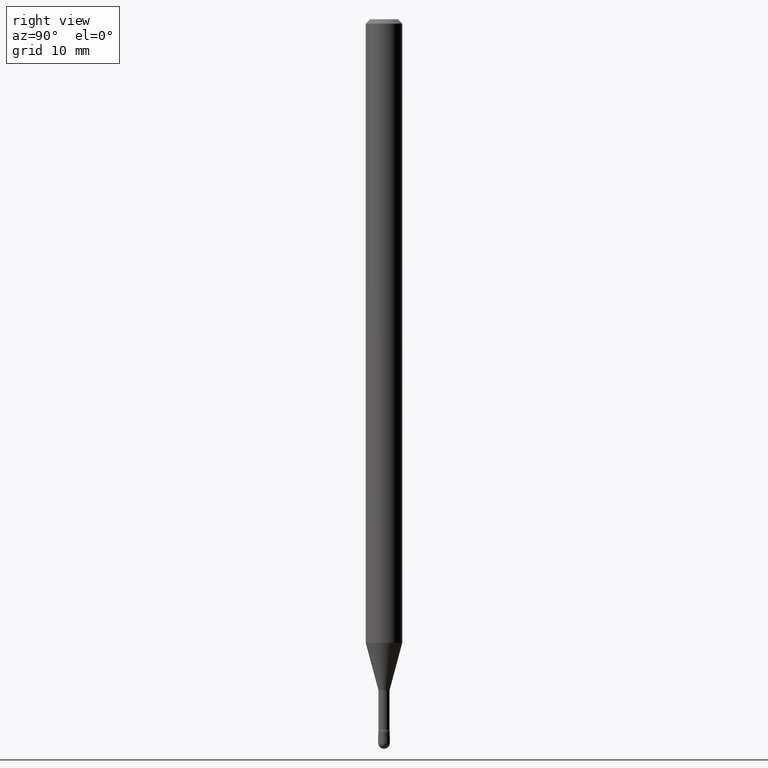
[diagram: clean part render]
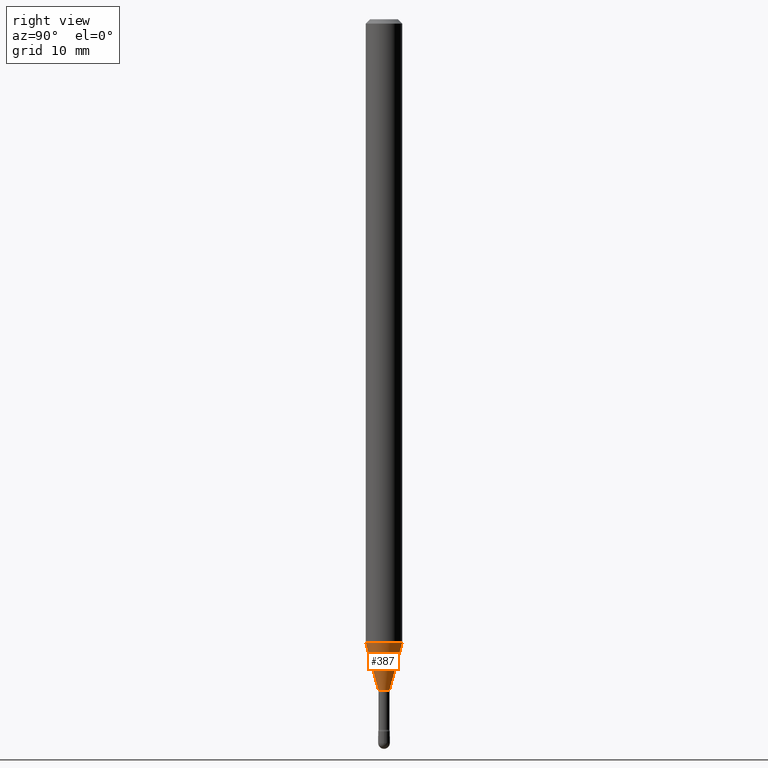
[diagram: same view with one face highlighted and labeled with its STEP entity id]
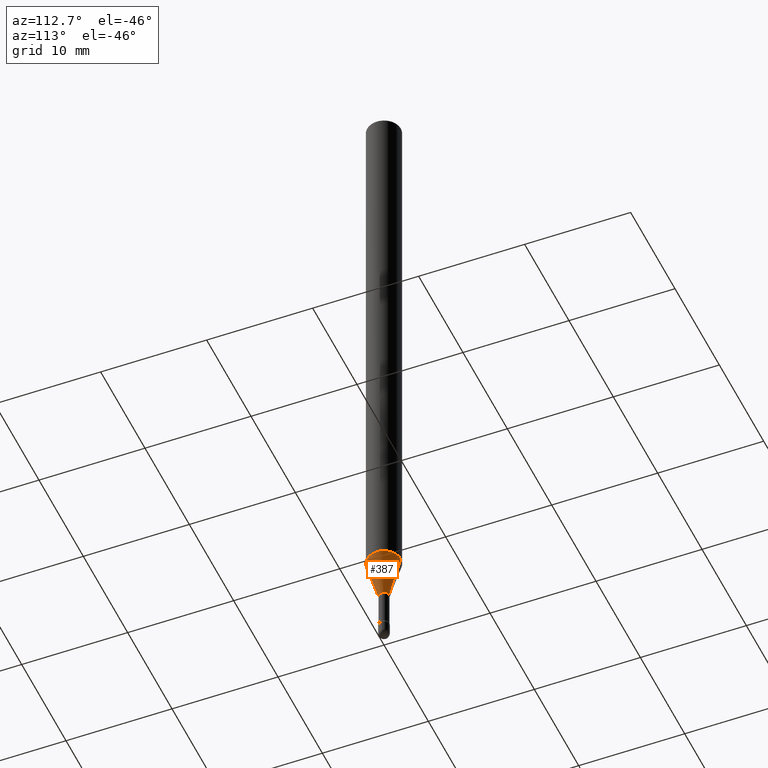
[diagram: same view with one face highlighted and labeled with its STEP entity id]
A machine part, right view. The second image highlights one B-rep face of the part: STEP entity #387.
A second angle (auxiliary view) of the same face is appended — the face is thin or edge-on in the first view.
In plain terms, the highlighted conical surface has half-angle 15 deg.
Its self-contained STEP definition (entity closure, byte-faithful):
#18 = DIRECTION ( 'NONE',  ( 1.839019923739597160E-15, 0.2588190451025245142, 0.9659258262890673130 ) ) ;
#19 = ORIENTED_EDGE ( 'NONE', *, *, #57, .T. ) ;
#23 = CARTESIAN_POINT ( 'NONE',  ( -4.364351673553395060E-16, -0.06250000000000748013, -2.136909379709240220 ) ) ;
#28 = CARTESIAN_POINT ( 'NONE',  ( 5.619804982841411344E-29, -8.023902526122054081E-15, -2.298092501787273090 ) ) ;
#45 = VERTEX_POINT ( 'NONE', #288 ) ;
#48 = CARTESIAN_POINT ( 'NONE',  ( 2.906514588320848063E-16, 0.01931111260565596122, -2.298092501787273090 ) ) ;
#57 = EDGE_CURVE ( 'NONE', #468, #107, #199, .T. ) ;
#63 = FACE_OUTER_BOUND ( 'NONE', #376, .T. ) ;
#75 = DIRECTION ( 'NONE',  ( -6.982962677686265922E-15, -1.000000000000000000, 0.000000000000000000 ) ) ;
#92 = EDGE_CURVE ( 'NONE', #107, #45, #169, .T. ) ;
#102 = AXIS2_PLACEMENT_3D ( 'NONE', #223, #319, #528 ) ;
#105 = ORIENTED_EDGE ( 'NONE', *, *, #92, .T. ) ;
#107 = VERTEX_POINT ( 'NONE', #48 ) ;
#132 = CIRCLE ( 'NONE', #102, 0.06250000000000000000 ) ;
#161 = ORIENTED_EDGE ( 'NONE', *, *, #268, .F. ) ;
#169 = LINE ( 'NONE', #486, #297 ) ;
#199 = CIRCLE ( 'NONE', #550, 0.01931111260566398605 ) ;
#204 = CARTESIAN_POINT ( 'NONE',  ( 5.619804982841411344E-29, -8.023902526122054081E-15, -2.298092501787273090 ) ) ;
#222 = EDGE_CURVE ( 'NONE', #468, #327, #489, .T. ) ;
#223 = CARTESIAN_POINT ( 'NONE',  ( 5.225644298752501589E-29, -7.461123760948621165E-15, -2.136909379709240220 ) ) ;
#229 = CARTESIAN_POINT ( 'NONE',  ( -1.348487785898921844E-16, -0.01931111260567201088, -2.298092501787273090 ) ) ;
#268 = EDGE_CURVE ( 'NONE', #327, #45, #132, .T. ) ;
#288 = CARTESIAN_POINT ( 'NONE',  ( 4.440892098501145824E-16, 0.06249999999999251987, -2.136909379709240664 ) ) ;
#297 = VECTOR ( 'NONE', #18, 39.37007874015748143 ) ;
#319 = DIRECTION ( 'NONE',  ( -2.445421573966572073E-29, 3.491548978068420720E-15, 1.000000000000000000 ) ) ;
#320 = CARTESIAN_POINT ( 'NONE',  ( -1.348487785898921844E-16, -0.01931111260567201088, -2.298092501787273090 ) ) ;
#327 = VERTEX_POINT ( 'NONE', #23 ) ;
#328 = DIRECTION ( 'NONE',  ( -2.445421573966572073E-29, 3.491548978068420720E-15, 1.000000000000000000 ) ) ;
#361 = CONICAL_SURFACE ( 'NONE', #526, 0.01931111260566398605, 0.2617993877991497964 ) ;
#376 = EDGE_LOOP ( 'NONE', ( #19, #105, #161, #491 ) ) ;
#387 = ADVANCED_FACE ( 'NONE', ( #63 ), #361, .T. ) ;
#435 = DIRECTION ( 'NONE',  ( -1.807323732225326984E-15, -0.2588190451025177419, 0.9659258262890690894 ) ) ;
#455 = DIRECTION ( 'NONE',  ( -6.982962677686265922E-15, -1.000000000000000000, 0.000000000000000000 ) ) ;
#462 = DIRECTION ( 'NONE',  ( -2.445421573966572073E-29, 3.491548978068420720E-15, 1.000000000000000000 ) ) ;
#468 = VERTEX_POINT ( 'NONE', #320 ) ;
#486 = CARTESIAN_POINT ( 'NONE',  ( 1.372137078140546112E-16, 0.01931111260565596122, -2.298092501787273090 ) ) ;
#489 = LINE ( 'NONE', #229, #532 ) ;
#491 = ORIENTED_EDGE ( 'NONE', *, *, #222, .F. ) ;
#526 = AXIS2_PLACEMENT_3D ( 'NONE', #204, #328, #455 ) ;
#528 = DIRECTION ( 'NONE',  ( -6.982962677686265922E-15, -1.000000000000000000, 4.370956789862821150E-15 ) ) ;
#532 = VECTOR ( 'NONE', #435, 39.37007874015748143 ) ;
#550 = AXIS2_PLACEMENT_3D ( 'NONE', #28, #462, #75 ) ;